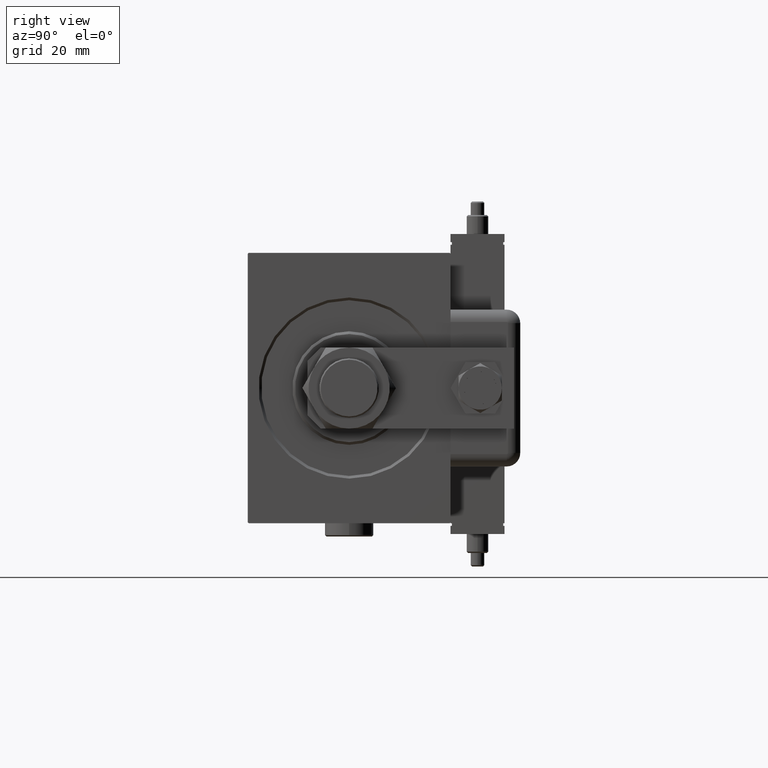
[diagram: clean part render]
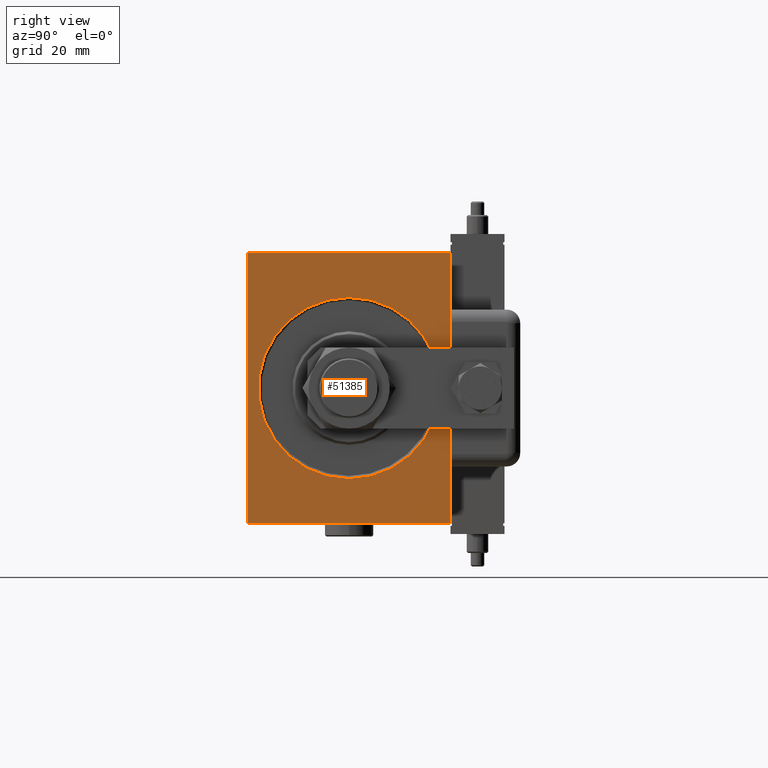
[diagram: same view with one face highlighted and labeled with its STEP entity id]
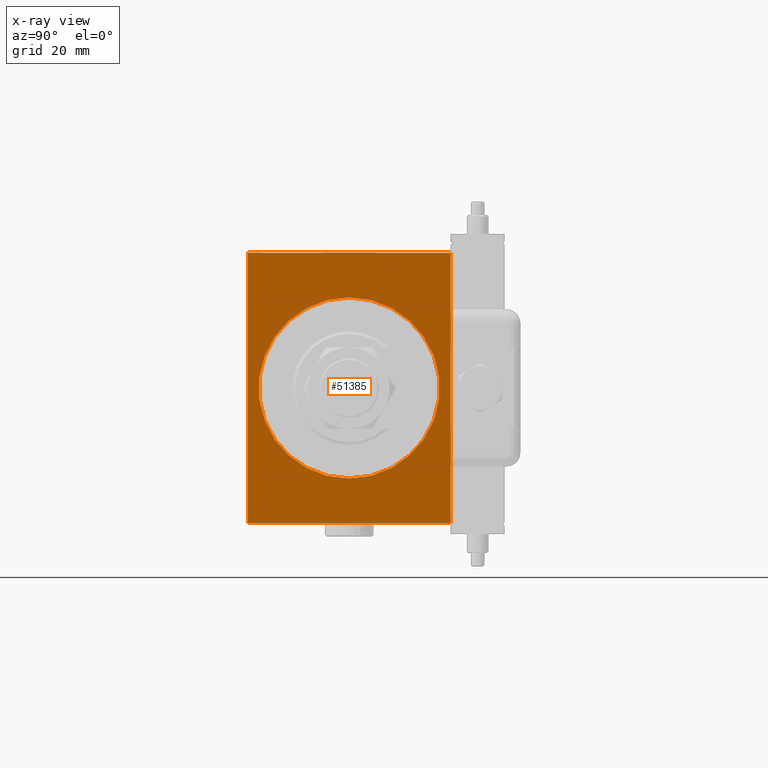
[diagram: x-ray of the same camera — body ghosted, the highlighted face saturated]
A machine part, right view. The second image highlights one B-rep face of the part: STEP entity #51385.
The next image is the same camera in x-ray: the body ghosted, the highlighted face saturated — about 0% of this face is hidden behind the body in this view.
In plain terms, the highlighted planar face has unit normal (-1, 0, 0).
Its self-contained STEP definition (entity closure, byte-faithful):
#151 = DIRECTION ( 'NONE',  ( -0.000000000000000000, -0.7071067811865474617, 0.7071067811865474617 ) ) ;
#1425 = CARTESIAN_POINT ( 'NONE',  ( 0.000000000000000000, 0.000000000000000000, 33.49999999999998579 ) ) ;
#2338 = VERTEX_POINT ( 'NONE', #44663 ) ;
#2824 = EDGE_CURVE ( 'NONE', #6824, #51740, #43463, .T. ) ;
#2971 = VECTOR ( 'NONE', #12759, 1000.000000000000000 ) ;
#3059 = DIRECTION ( 'NONE',  ( 0.000000000000000000, 1.000000000000000000, 9.251858538542970348E-17 ) ) ;
#3936 = ORIENTED_EDGE ( 'NONE', *, *, #51465, .T. ) ;
#5024 = CARTESIAN_POINT ( 'NONE',  ( 0.000000000000000000, 37.20000000000001705, -50.00000000000000711 ) ) ;
#5618 = DIRECTION ( 'NONE',  ( 1.000000000000000000, 0.000000000000000000, 0.000000000000000000 ) ) ;
#6391 = LINE ( 'NONE', #56509, #55365 ) ;
#6604 = LINE ( 'NONE', #55247, #46602 ) ;
#6785 = CARTESIAN_POINT ( 'NONE',  ( 0.000000000000000000, -37.19999999999999574, 50.00000000000000000 ) ) ;
#6824 = VERTEX_POINT ( 'NONE', #28174 ) ;
#7253 = PLANE ( 'NONE',  #12441 ) ;
#7561 = DIRECTION ( 'NONE',  ( 1.000000000000000000, 0.000000000000000000, 0.000000000000000000 ) ) ;
#8504 = VERTEX_POINT ( 'NONE', #33310 ) ;
#8522 = VERTEX_POINT ( 'NONE', #53160 ) ;
#9043 = VECTOR ( 'NONE', #34686, 1000.000000000000000 ) ;
#9486 = DIRECTION ( 'NONE',  ( -0.000000000000000000, 0.7071067811865556774, 0.7071067811865393571 ) ) ;
#9951 = ORIENTED_EDGE ( 'NONE', *, *, #15396, .T. ) ;
#10388 = EDGE_CURVE ( 'NONE', #2338, #11962, #39887, .T. ) ;
#11698 = DIRECTION ( 'NONE',  ( 0.000000000000000000, 0.000000000000000000, -1.000000000000000000 ) ) ;
#11962 = VERTEX_POINT ( 'NONE', #6785 ) ;
#12441 = AXIS2_PLACEMENT_3D ( 'NONE', #21957, #7561, #46594 ) ;
#12759 = DIRECTION ( 'NONE',  ( 0.000000000000000000, -1.387778780781445182E-16, 1.000000000000000000 ) ) ;
#14998 = ORIENTED_EDGE ( 'NONE', *, *, #53357, .F. ) ;
#15199 = CARTESIAN_POINT ( 'NONE',  ( 0.000000000000000000, 37.49999999999999289, 50.00000000000001421 ) ) ;
#15371 = VERTEX_POINT ( 'NONE', #48844 ) ;
#15396 = EDGE_CURVE ( 'NONE', #51557, #15371, #28648, .T. ) ;
#16111 = CARTESIAN_POINT ( 'NONE',  ( 0.000000000000000000, -37.50000000000000000, 50.00000000000000000 ) ) ;
#16543 = VECTOR ( 'NONE', #151, 1000.000000000000114 ) ;
#17861 = CARTESIAN_POINT ( 'NONE',  ( 0.000000000000000000, 37.20000000000000995, 50.00000000000001421 ) ) ;
#19587 = EDGE_LOOP ( 'NONE', ( #9951, #54370 ) ) ;
#20889 = DIRECTION ( 'NONE',  ( 0.000000000000000000, 0.000000000000000000, -1.000000000000000000 ) ) ;
#21957 = CARTESIAN_POINT ( 'NONE',  ( 0.000000000000000000, 0.000000000000000000, 0.000000000000000000 ) ) ;
#27082 = ORIENTED_EDGE ( 'NONE', *, *, #2824, .T. ) ;
#28174 = CARTESIAN_POINT ( 'NONE',  ( 0.000000000000000000, 37.50000000000000711, -49.70000000000003126 ) ) ;
#28648 = CIRCLE ( 'NONE', #53196, 33.49999999999998579 ) ;
#29554 = VERTEX_POINT ( 'NONE', #51070 ) ;
#33247 = VECTOR ( 'NONE', #44102, 1000.000000000000000 ) ;
#33310 = CARTESIAN_POINT ( 'NONE',  ( 0.000000000000000000, 37.49999999999999289, 49.70000000000003126 ) ) ;
#33967 = EDGE_CURVE ( 'NONE', #61475, #8504, #6604, .T. ) ;
#34686 = DIRECTION ( 'NONE',  ( 0.000000000000000000, -1.000000000000000000, -1.850371707708594563E-16 ) ) ;
#35053 = CARTESIAN_POINT ( 'NONE',  ( 0.000000000000000000, -37.50000000000000000, 49.70000000000000995 ) ) ;
#39543 = VECTOR ( 'NONE', #9486, 1000.000000000000000 ) ;
#39887 = LINE ( 'NONE', #35053, #39543 ) ;
#40520 = DIRECTION ( 'NONE',  ( 0.000000000000000000, 0.000000000000000000, -1.000000000000000000 ) ) ;
#40850 = ORIENTED_EDGE ( 'NONE', *, *, #44333, .F. ) ;
#42393 = ORIENTED_EDGE ( 'NONE', *, *, #10388, .T. ) ;
#43463 = LINE ( 'NONE', #53714, #33247 ) ;
#43661 = EDGE_CURVE ( 'NONE', #61475, #11962, #59055, .T. ) ;
#44102 = DIRECTION ( 'NONE',  ( 0.000000000000000000, -0.7071067811865556774, -0.7071067811865393571 ) ) ;
#44253 = LINE ( 'NONE', #16111, #54573 ) ;
#44333 = EDGE_CURVE ( 'NONE', #6824, #8504, #57539, .T. ) ;
#44639 = LINE ( 'NONE', #53930, #16543 ) ;
#44663 = CARTESIAN_POINT ( 'NONE',  ( 0.000000000000000000, -37.50000000000000000, 49.70000000000000995 ) ) ;
#46278 = FACE_OUTER_BOUND ( 'NONE', #46758, .T. ) ;
#46594 = DIRECTION ( 'NONE',  ( 0.000000000000000000, 0.000000000000000000, -1.000000000000000000 ) ) ;
#46602 = VECTOR ( 'NONE', #60385, 1000.000000000000000 ) ;
#46758 = EDGE_LOOP ( 'NONE', ( #54722, #53998, #40850, #27082, #60514, #3936, #14998, #42393 ) ) ;
#46991 = EDGE_CURVE ( 'NONE', #15371, #51557, #49015, .T. ) ;
#47991 = AXIS2_PLACEMENT_3D ( 'NONE', #50403, #5618, #11698 ) ;
#48844 = CARTESIAN_POINT ( 'NONE',  ( 0.000000000000000000, 4.102566777143632196E-15, -33.49999999999998579 ) ) ;
#49015 = CIRCLE ( 'NONE', #47991, 33.49999999999998579 ) ;
#50113 = DIRECTION ( 'NONE',  ( 1.000000000000000000, 0.000000000000000000, 0.000000000000000000 ) ) ;
#50403 = CARTESIAN_POINT ( 'NONE',  ( 0.000000000000000000, 0.000000000000000000, 0.000000000000000000 ) ) ;
#51070 = CARTESIAN_POINT ( 'NONE',  ( 0.000000000000000000, -37.20000000000000284, -50.00000000000001421 ) ) ;
#51385 = ADVANCED_FACE ( 'NONE', ( #51387, #46278 ), #7253, .F. ) ;
#51387 = FACE_BOUND ( 'NONE', #19587, .T. ) ;
#51465 = EDGE_CURVE ( 'NONE', #29554, #8522, #44639, .T. ) ;
#51557 = VERTEX_POINT ( 'NONE', #1425 ) ;
#51740 = VERTEX_POINT ( 'NONE', #5024 ) ;
#53160 = CARTESIAN_POINT ( 'NONE',  ( 0.000000000000000000, -37.50000000000000000, -49.70000000000002416 ) ) ;
#53196 = AXIS2_PLACEMENT_3D ( 'NONE', #54600, #50113, #40520 ) ;
#53357 = EDGE_CURVE ( 'NONE', #2338, #8522, #44253, .T. ) ;
#53714 = CARTESIAN_POINT ( 'NONE',  ( 0.000000000000000000, 37.50000000000000711, -49.70000000000003126 ) ) ;
#53930 = CARTESIAN_POINT ( 'NONE',  ( 0.000000000000000000, -37.20000000000000284, -50.00000000000001421 ) ) ;
#53998 = ORIENTED_EDGE ( 'NONE', *, *, #33967, .T. ) ;
#54370 = ORIENTED_EDGE ( 'NONE', *, *, #46991, .T. ) ;
#54573 = VECTOR ( 'NONE', #20889, 1000.000000000000000 ) ;
#54600 = CARTESIAN_POINT ( 'NONE',  ( 0.000000000000000000, 0.000000000000000000, 0.000000000000000000 ) ) ;
#54722 = ORIENTED_EDGE ( 'NONE', *, *, #43661, .F. ) ;
#55247 = CARTESIAN_POINT ( 'NONE',  ( 0.000000000000000000, 37.20000000000000995, 50.00000000000001421 ) ) ;
#55365 = VECTOR ( 'NONE', #3059, 1000.000000000000000 ) ;
#56509 = CARTESIAN_POINT ( 'NONE',  ( 0.000000000000000000, -37.50000000000000000, -50.00000000000001421 ) ) ;
#57276 = EDGE_CURVE ( 'NONE', #29554, #51740, #6391, .T. ) ;
#57539 = LINE ( 'NONE', #61727, #2971 ) ;
#59055 = LINE ( 'NONE', #15199, #9043 ) ;
#60385 = DIRECTION ( 'NONE',  ( -0.000000000000000000, 0.7071067811865393571, -0.7071067811865556774 ) ) ;
#60514 = ORIENTED_EDGE ( 'NONE', *, *, #57276, .F. ) ;
#61475 = VERTEX_POINT ( 'NONE', #17861 ) ;
#61727 = CARTESIAN_POINT ( 'NONE',  ( 0.000000000000000000, 37.50000000000000711, -50.00000000000000711 ) ) ;